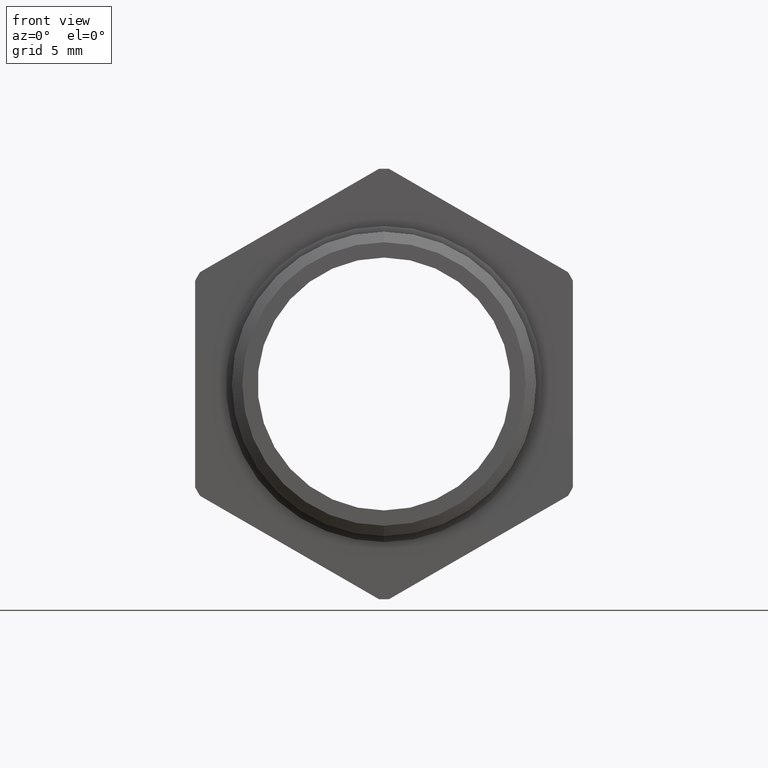
[diagram: clean part render]
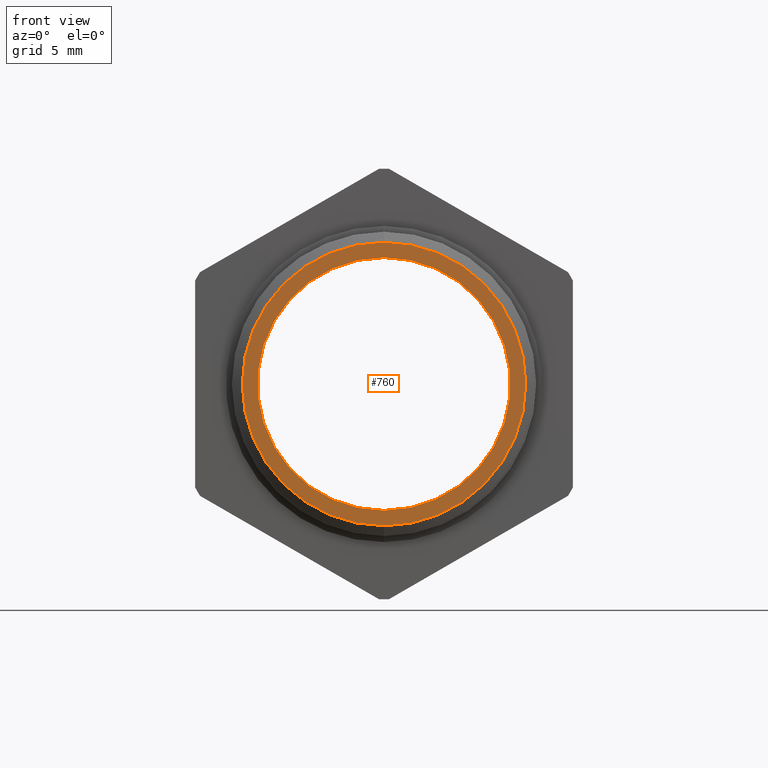
[diagram: same view with one face highlighted and labeled with its STEP entity id]
A machine part, front view. The second image highlights one B-rep face of the part: STEP entity #760.
In plain terms, the highlighted planar face has unit normal (0, -1, -0).
Its self-contained STEP definition (entity closure, byte-faithful):
#618 = DIRECTION ( 'NONE',  ( 0.0000000000000000000, 0.0000000000000000000, -1.000000000000000000 ) ) ;
#619 = DIRECTION ( 'NONE',  ( -0.0000000000000000000, -1.000000000000000000, -0.0000000000000000000 ) ) ;
#620 = CARTESIAN_POINT ( 'NONE',  ( 0.0000000000000000000, 4.268512490100411300E-018, 0.0000000000000000000 ) ) ;
#621 = AXIS2_PLACEMENT_3D ( 'NONE', #620, #619, #618 ) ;
#622 = CIRCLE ( 'NONE', #621, 0.3676287765502973000 ) ;
#753 = EDGE_LOOP ( 'NONE', ( #3404, #3402 ) ) ;
#754 = ORIENTED_EDGE ( 'NONE', *, *, #1416, .F. ) ;
#755 = EDGE_CURVE ( 'NONE', #1417, #1297, #1858, .T. ) ;
#756 = EDGE_LOOP ( 'NONE', ( #757, #754 ) ) ;
#757 = ORIENTED_EDGE ( 'NONE', *, *, #755, .F. ) ;
#760 = ADVANCED_FACE ( 'NONE', ( #1848, #1847 ), #1846, .T. ) ;
#1297 = VERTEX_POINT ( 'NONE', #2695 ) ;
#1416 = EDGE_CURVE ( 'NONE', #1297, #1417, #2915, .T. ) ;
#1417 = VERTEX_POINT ( 'NONE', #2910 ) ;
#1573 = VERTEX_POINT ( 'NONE', #3221 ) ;
#1576 = EDGE_CURVE ( 'NONE', #1577, #1573, #3220, .T. ) ;
#1577 = VERTEX_POINT ( 'NONE', #3215 ) ;
#1841 = DIRECTION ( 'NONE',  ( 0.0000000000000000000, 0.0000000000000000000, -1.000000000000000000 ) ) ;
#1842 = DIRECTION ( 'NONE',  ( 0.0000000000000000000, -1.000000000000000000, -0.0000000000000000000 ) ) ;
#1843 = AXIS2_PLACEMENT_3D ( 'NONE', #1845, #1842, #1841 ) ;
#1845 = CARTESIAN_POINT ( 'NONE',  ( 0.3280000000000000100, 6.351524503190674300E-018, 0.0000000000000000000 ) ) ;
#1846 = PLANE ( 'NONE',  #1843 ) ;
#1847 = FACE_OUTER_BOUND ( 'NONE', #753, .T. ) ;
#1848 = FACE_BOUND ( 'NONE', #756, .T. ) ;
#1854 = DIRECTION ( 'NONE',  ( 0.0000000000000000000, 0.0000000000000000000, -1.000000000000000000 ) ) ;
#1855 = DIRECTION ( 'NONE',  ( -0.0000000000000000000, -1.000000000000000000, -0.0000000000000000000 ) ) ;
#1856 = CARTESIAN_POINT ( 'NONE',  ( 0.0000000000000000000, 0.0000000000000000000, 0.0000000000000000000 ) ) ;
#1857 = AXIS2_PLACEMENT_3D ( 'NONE', #1856, #1855, #1854 ) ;
#1858 = CIRCLE ( 'NONE', #1857, 0.3280000000000000100 ) ;
#2695 = CARTESIAN_POINT ( 'NONE',  ( 4.016841501203318300E-017, 0.0000000000000000000, 0.3280000000000000100 ) ) ;
#2910 = CARTESIAN_POINT ( 'NONE',  ( 0.0000000000000000000, 0.0000000000000000000, -0.3280000000000000100 ) ) ;
#2911 = DIRECTION ( 'NONE',  ( 0.0000000000000000000, 0.0000000000000000000, -1.000000000000000000 ) ) ;
#2912 = DIRECTION ( 'NONE',  ( -0.0000000000000000000, -1.000000000000000000, -0.0000000000000000000 ) ) ;
#2913 = CARTESIAN_POINT ( 'NONE',  ( 0.0000000000000000000, 0.0000000000000000000, 0.0000000000000000000 ) ) ;
#2914 = AXIS2_PLACEMENT_3D ( 'NONE', #2913, #2912, #2911 ) ;
#2915 = CIRCLE ( 'NONE', #2914, 0.3280000000000000100 ) ;
#3215 = CARTESIAN_POINT ( 'NONE',  ( 0.0000000000000000000, 4.268512490100411300E-018, -0.3676287765502973000 ) ) ;
#3216 = DIRECTION ( 'NONE',  ( 0.0000000000000000000, 0.0000000000000000000, -1.000000000000000000 ) ) ;
#3217 = DIRECTION ( 'NONE',  ( -0.0000000000000000000, -1.000000000000000000, -0.0000000000000000000 ) ) ;
#3218 = CARTESIAN_POINT ( 'NONE',  ( 0.0000000000000000000, 4.268512490100411300E-018, 0.0000000000000000000 ) ) ;
#3219 = AXIS2_PLACEMENT_3D ( 'NONE', #3218, #3217, #3216 ) ;
#3220 = CIRCLE ( 'NONE', #3219, 0.3676287765502973000 ) ;
#3221 = CARTESIAN_POINT ( 'NONE',  ( 4.502154044767790700E-017, 4.268512490100411300E-018, 0.3676287765502973000 ) ) ;
#3402 = ORIENTED_EDGE ( 'NONE', *, *, #3403, .T. ) ;
#3403 = EDGE_CURVE ( 'NONE', #1573, #1577, #622, .T. ) ;
#3404 = ORIENTED_EDGE ( 'NONE', *, *, #1576, .T. ) ;